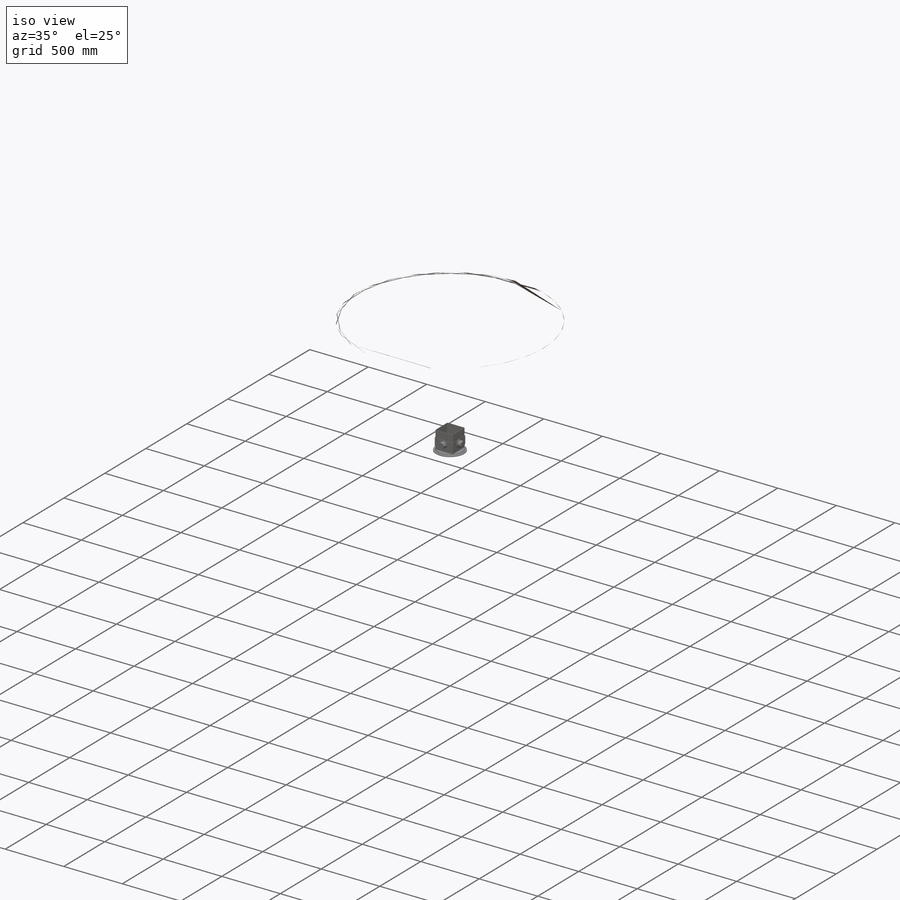
[diagram: iso view]
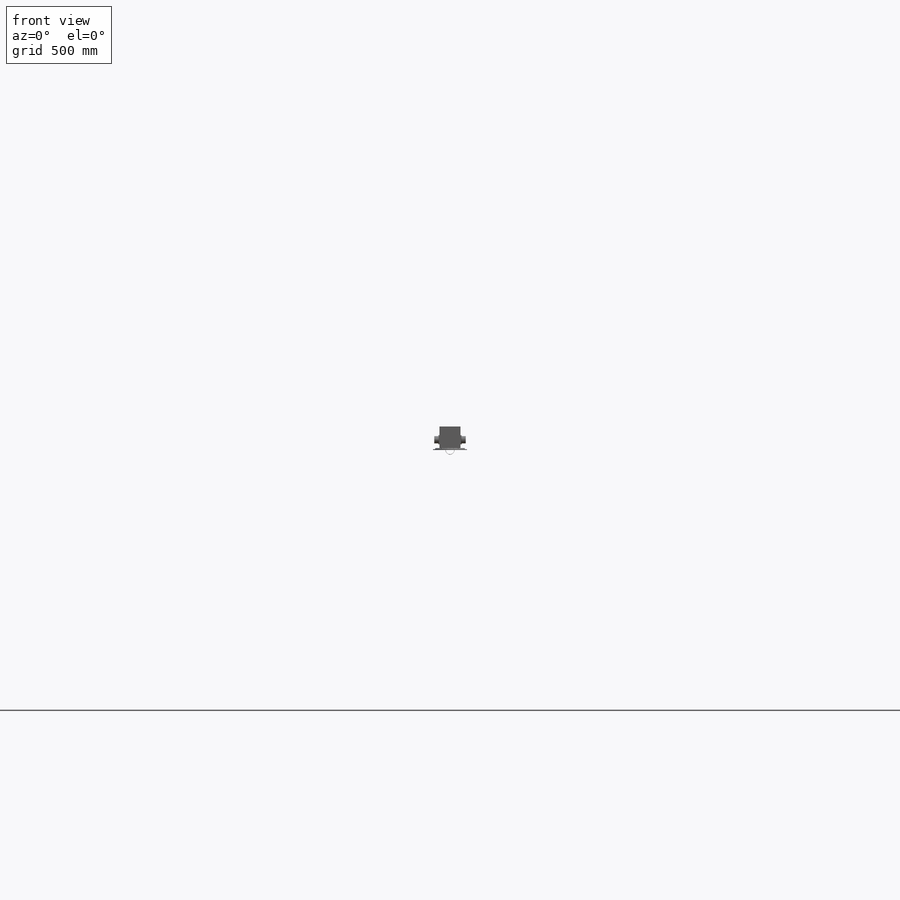
[diagram: front view]
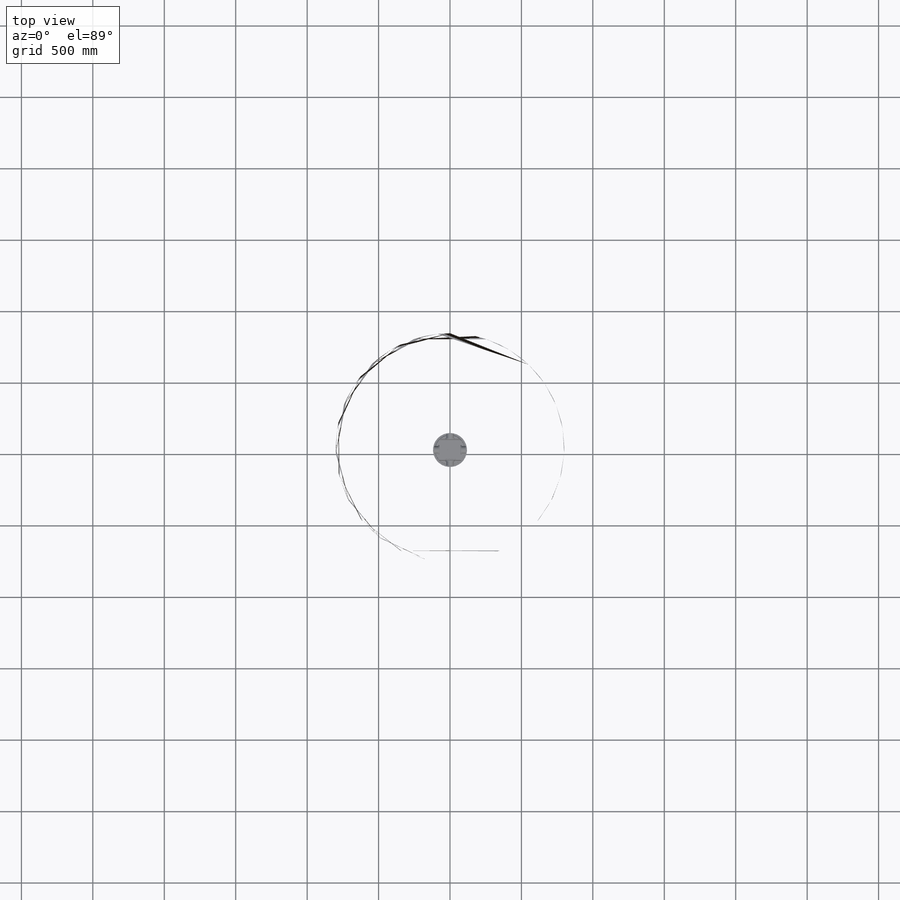
[diagram: top view]
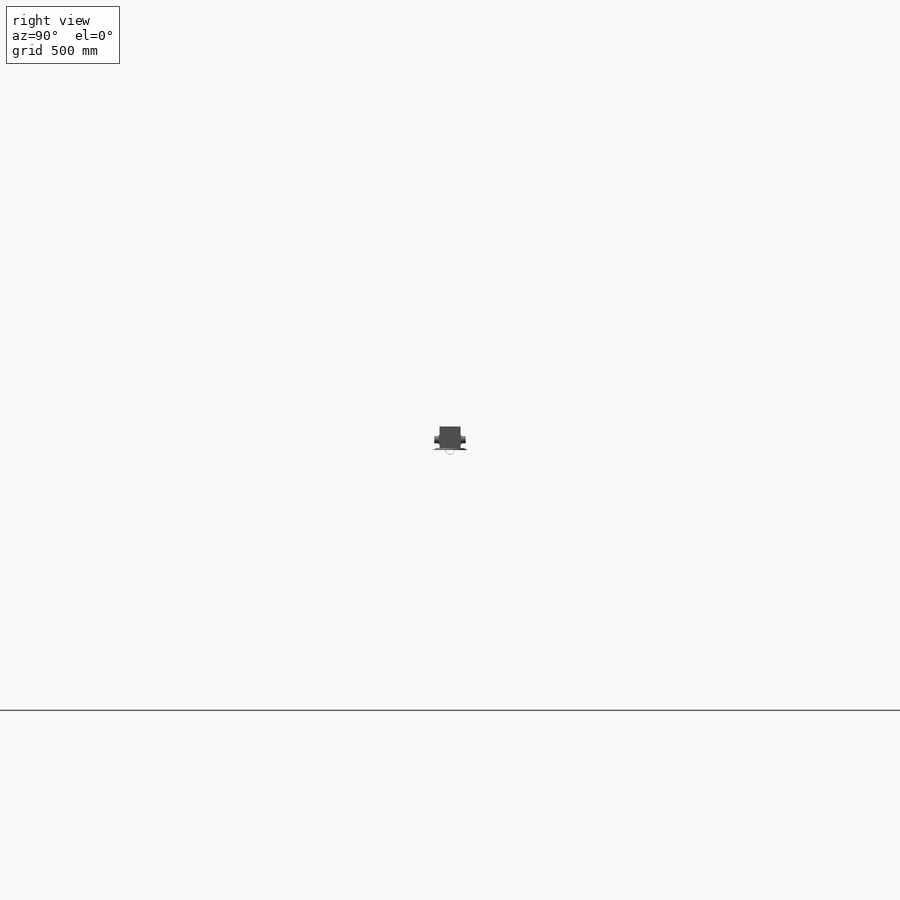
[diagram: right view]
SOLIDWORKS PART (.sldprt)
format: sldprt  version: not decoded by parser v0  size: 4,026,880 bytes
history: native  units: mm
features: sketch x42, extrude x37, plane x12, cut_extrude x2, material x1, revolve x1, chamfer x1 (+13 scaffold rows collapsed; 3 parser-record rows omitted)
feature tree (112):
  scaffold x13  (default folders/planes/origin — collapsed)
  material  "Материал <не указан>"
  plane  "Спереди"
  plane  "Сверху"
  plane  "Справа"
  sketch  "Эскиз1"  dims[D1=119.0mm D2=5.0mm D3=12.0mm D4=10.0mm D5=16.0mm D6=3.03mm D7=110.0mm D8=2.0mm]
  revolve  "основание"  Angle=360deg
  sketch  "Эскиз2"  dims[c1.D5=3.0mm c1.D6=3.0mm c1.D7=3.0mm c1.D8=3.0mm c1.D1=~189.71054mm c1.D2=~205.333761mm c2.D1=124.0mm c2.D2=124.0mm c2.D3=62.0mm c2.D4=62.0mm c2.D9=4.0mm c2.D10=4.0mm c2.D11=4.0mm c2.D12=4.0mm c2.D13=4.0mm c2.D14=4.0mm c2.D15=4.0mm c2.D16=4.0mm]
  plane  "Плоскость отсчета"  Offset=0.2mm
  parser-record x3  (decoder bookkeeping rows leaked as tree rows — omitted from the tree; the rows remain in map.json)
  sketch  "Эскиз гайки"  dims[c1.D1=~9.358215mm c1.D2=~9.492119mm c2.D1=8.2mm c2.D2=8.2mm c2.D3=8.2mm c2.D4=8.2mm c2.D5=8.2mm c2.D6=8.2mm c2.D7=8.2mm c2.D8=8.2mm]
  extrude  "гайки"  Depth=2mm
  sketch  "Эскиз джем2"  dims[c1.D3=3.0mm c1.D4=3.0mm c1.D5=3.0mm c1.D6=3.0mm c1.D14=3.0mm c1.D1=124.0mm c1.D2=124.0mm c1.D7=4.0mm c1.D8=4.0mm c1.D9=4.0mm c1.D10=4.0mm c1.D11=4.0mm c1.D12=4.0mm c1.D13=4.0mm c2.D14=4.0mm c2.D15=20.0mm c2.D16=40.0mm c2.D17=50.0mm c2.D18=56.0mm c2.D3=4.0mm c2.D13=4.0mm]
  extrude  "джем2"  Depth=0.5mm
  sketch  "Эскиз столбики1"  dims[D1=8.0mm D2=8.0mm D3=8.0mm D4=8.0mm]
  extrude  "столбики1"  Depth=15.5mm
  sketch  "Эскиз кольцо1"  dims[c1.D5=3.0mm c1.D6=3.0mm c1.D7=3.0mm c1.D1=18.0mm c1.D2=18.0mm c1.D3=18.0mm c1.D4=18.0mm c1.D8=4.0mm c1.D9=4.0mm c1.D10=4.0mm c1.D11=4.0mm c1.D12=4.0mm c1.D13=4.0mm c1.D14=4.0mm c1.D15=4.0mm c2.D5=2.0mm c2.D6=30.24mm]
  extrude  "кольцо1"  Depth=0.5mm
  sketch  "Эскиз столбики2"  dims[D1=8.0mm D2=8.0mm D3=8.0mm D4=8.0mm D5=116.0mm D6=116.0mm D7=116.0mm D8=116.0mm]
  extrude  "столбики2"  Depth=15.5mm
  sketch  "Эскиз кольцо2"  dims[D1=18.0mm D2=18.0mm D3=18.0mm D4=18.0mm D5=2.0mm D6=30.24mm]
  extrude  "кольцо2"  Depth=0.5mm
  sketch  "Эскиз столбики3"  dims[D1=8.0mm D2=8.0mm D3=8.0mm D4=8.0mm D5=116.0mm D6=116.0mm D7=116.0mm D8=116.0mm]
  extrude  "столбики3"  Depth=15.5mm
  sketch  "Эскиз джем1"  dims[c1.D8=3.0mm c1.D11=3.0mm c1.D14=3.0mm c1.D17=3.0mm c1.D1=11.0mm c1.D2=5.0mm c1.D3=11.0mm c1.D4=14.0mm c1.D5=8.0mm c1.D6=5.0mm c1.D7=11.0mm c1.D9=4.0mm c1.D10=4.0mm c1.D12=4.0mm c1.D13=4.0mm c1.D15=4.0mm c1.D16=4.0mm c1.D18=4.0mm c1.D19=4.0mm c1.D20=50.0mm c1.D21=56.0mm c1.D22=41.0mm c1.D23=30.0mm c2.D17=124.0mm c2.D18=124.0mm]
  extrude  "джем1"  Depth=0.5mm
  sketch  "Эскиз столбики4"  dims[D1=8.0mm D2=8.0mm D3=8.0mm D4=8.0mm]
  extrude  "столбики4"  Depth=15.5mm
  sketch  "Эскиз Джем3"  dims[D6=2.0mm D2=18.0mm D3=18.0mm D4=18.0mm D5=18.0mm D1=0.0mm D7=23.0 D8=23.0]
  extrude  "джем3"  Depth=0.5mm
  sketch  "Эскиз столбики5"
  extrude  "столбики5"  Depth=4mm
  sketch  "Эскиз Джем4"  dims[D4=3.0mm D5=3.0mm D6=3.0mm D7=3.0mm D1=0.0mm D2=23.0 D3=23.0]
  extrude  "Джем4"  Depth=0.5mm
  sketch  "Эскиз столбики6"
  extrude  "столбики6"  Depth=5mm
  sketch  "Эскиз сетка"  dims[D1=0.0mm]
  extrude  "сетка"  Depth=0.5mm
  sketch  "Эскиз прозрачное стекло"  dims[D1=0.0mm]
  extrude  "прозрачное стекло"  Depth=1.5mm
  sketch  "Эскиз гайки2"
  extrude  "Гайки2"  Depth=2mm
  sketch  "Эскиз подложка GPD"  dims[D1=0.0mm]
  extrude  "Подложка GPD"  Depth=1mm
  sketch  "Эскиз 25GPD"  dims[c1.D2=~12.412275mm c1.D3=~7.683789mm c2.D2=3.0mm c2.D3=3.0mm c2.D4=40.5mm c2.D5=40.5mm c2.D1=0.0mm c2.D6=5.0 c2.D7=5.0]
  extrude  "25GPD"  Depth=1mm
  plane  "Плоскость для R1"  Offset=3mm
  sketch  "Эски R1"  dims[c1.D1=~20.753298mm c1.D2=~4.305205mm c2.D1=2.0mm c2.D2=12.5mm c2.D3=12.5mm c2.D4=12.5mm c2.D5=12.5mm]
  extrude  "R1"  Depth=7mm
  sketch  "Эскиз для плоскости R2"  dims[D1=~20.260308mm]
  plane  "Плоскость вспомогательная R2"
  plane  "Плоскость R2"
  sketch  "Эскиз R2"  dims[c1.D1=~1.510134mm c1.D2=~12.478472mm c2.D1=2.0mm c2.D2=12.5mm c2.D3=2.0mm c2.D4=12.5mm c2.D5=2.0mm c2.D6=12.5mm c2.D7=2.0mm c2.D8=12.5mm c2.D9=2.0mm c2.D10=12.5mm c2.D11=2.0mm c2.D12=12.5mm c2.D13=3.0mm c2.D14=14.0mm c2.D15=3.0mm c2.D16=3.0mm c2.D17=3.0mm c2.D18=3.0mm]
  extrude  "R2"  Depth=7mm
  plane  "Плоскость R3"  Offset=1mm
  sketch  "Эскиз R3"
  extrude  "R3"  Depth=7mm
  plane  "Плоскость R4"  Offset=1mm
  sketch  "Эскиз R4"  dims[c1.D1=~12.937331mm c1.D2=~1.819312mm c2.D1=2.0mm c2.D2=12.5mm c2.D3=2.0mm c2.D4=12.5mm c2.D5=2.0mm c2.D6=12.5mm]
  extrude  "R4"  Depth=7mm
  plane  "Плоскость изолятора"  Offset=1mm
  sketch  "Эскиз изолятор"  dims[c1.D7=3.0mm c1.D1=~171.620443mm c1.D2=~150.875022mm c2.D1=147.0mm c2.D2=147.0mm c2.D3=~140.245862mm c2.D4=~140.245862mm c3.D3=2.0mm c3.D4=2.0mm c3.D5=2.0mm c3.D6=2.0mm]
  extrude  "изолятор"  Depth=150mm
  plane  "Плоскость ФЭУ"  Offset=7mm
  sketch  "Эскиз ФЭУ"  dims[c1.D7=2.0mm c1.D1=~167.121264mm c1.D2=~162.606485mm c2.D1=155.0mm c2.D2=155.0mm c2.D3=~150.329699mm c2.D4=~144.216972mm c3.D3=1.5mm c3.D4=1.5mm c3.D5=1.5mm c3.D6=1.5mm]
  extrude  "каркас ФЭУ"  Depth=63mm
  sketch  "Эскиз отв1"  dims[D1=~0.115554mm]
  cut_extrude  "Вырез-1"  [1 undecoded]
  sketch  "Эскиз отв2"  dims[D1=~33.577158mm]
  cut_extrude  "Вырез-2"  [1 undecoded]
  sketch  "Эскиз шайба1"  dims[D1=51.0mm D2=63.0mm]
  extrude  "шайба1"  Depth=2.48mm
  sketch  "Эскиз шайба2"  dims[D1=51.0mm D2=63.0mm]
  extrude  "шайба2"  Depth=2.48mm
  sketch  "Эскиз шайба3"  dims[D1=51.0mm D2=63.0mm]
  extrude  "шайба3"  Depth=2.48mm
  sketch  "Эскиз шайба4"  dims[D1=51.0mm D2=63.0mm]
  extrude  "шайба4"  Depth=2.48mm
  chamfer  "Фаска для шайб"  Distance=1mm Angle=60deg
  sketch  "Эскиз ФЭУ_1_1"  dims[D1=65.0mm]
  sketch  "Эскиз ФЭУ_1_2"  dims[D1=65.0mm]
  sketch  "Эскиз ФЭУ_1_3"  dims[D1=65.0mm]
  sketch  "Эскиз ФЭУ_1_4"  dims[D1=65.0mm]
  extrude  "Бобышка-ФЭУ_1_1"  Depth=4mm
  extrude  "Бобышка-ФЭУ_1_2"  Depth=4mm
  extrude  "Бобышка-ФЭУ_1_3"  Depth=4mm
  extrude  "Бобышка-ФЭУ_1_4"  Depth=4mm
  sketch  "Эскиз-ФЭУ_2_1"  dims[D1=51.0mm]
  sketch  "Эскиз-ФЭУ_2_2"  dims[D1=51.0mm]
  sketch  "Эскиз-ФЭУ_2_3"  dims[D1=51.0mm]
  sketch  "Эскиз-ФЭУ_2_4"  dims[D1=51.0mm]
  extrude  "Бобышка-ФЭУ_2_1"  Depth=29mm
  extrude  "Бобышка-ФЭУ_2_2"  Depth=29mm
  extrude  "Бобышка-ФЭУ_2_3"  Depth=29mm
  extrude  "Бобышка-ФЭУ_2_4"  Depth=29mm
  plane  "Плоскость для вращения ФЭУ"
  sketch  "Эскиз Аргон"  dims[D1=238.0mm]
  extrude  "Жидкий Аргон"  Depth=60mm
decode coverage: 77 of 83 modeling features carry decoded parameters
note: ~ marks probable driven/reference dimensions
note: 2 parameter values undecoded
note: suppression state not decoded; provenance and decode notes live in map.json
